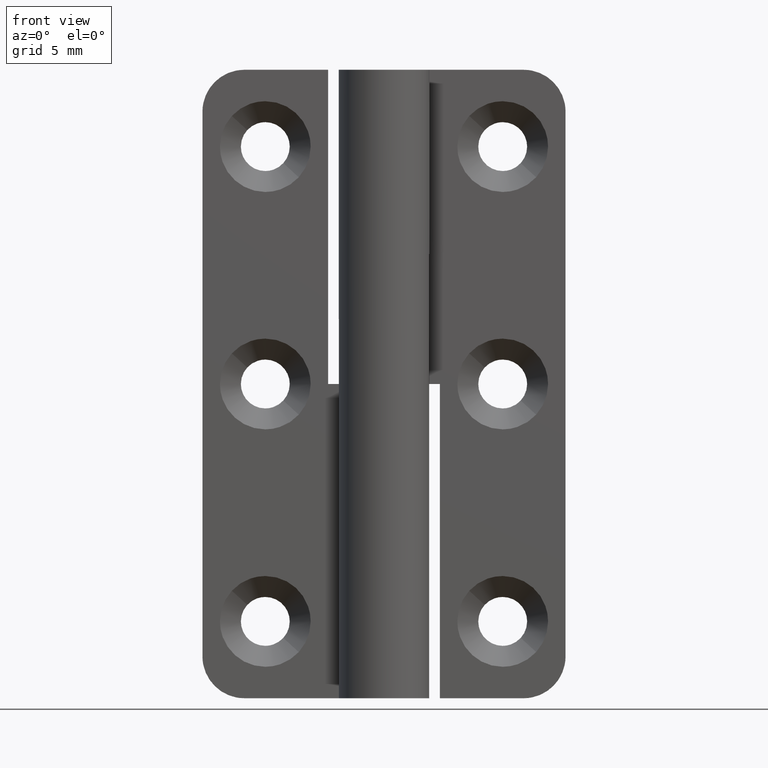
[diagram: clean part render]
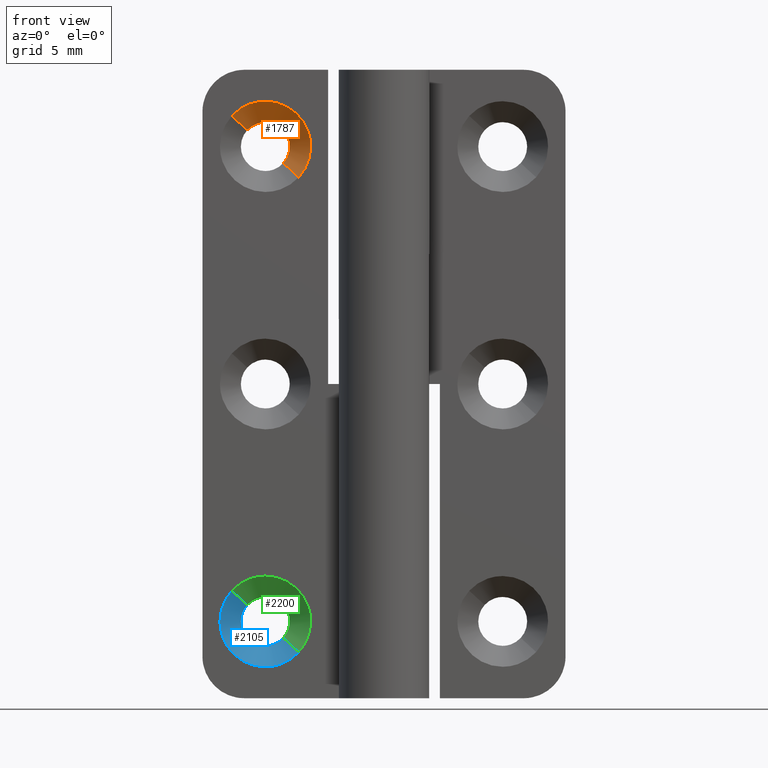
[diagram: same view with three faces highlighted in distinct colors, each labeled with its STEP entity id]
A machine part, front view with three faces highlighted in distinct colors.
Their STEP definitions:

[orange] entity #1787 — the highlighted face is a freeform B-spline surface patch.
#1600=CARTESIAN_POINT('',(-9.790236962348335,3.249997932917373,40.682298350468500));
#1601=VERTEX_POINT('',#1600);
#1611=CARTESIAN_POINT('',(-10.896151452361130,1.749999951437262,41.695682272985792));
#1612=VERTEX_POINT('',#1611);
#1613=CARTESIAN_POINT('',(-9.790236962348335,3.249997932917373,40.682298350468500));
#1614=CARTESIAN_POINT('',(-10.896151452361130,1.749999951437262,41.695682272985792));
#1615=QUASI_UNIFORM_CURVE('',1,(#1613,#1614),.UNSPECIFIED.,.F.,.U.);
#1616=EDGE_CURVE('',#1601,#1612,#1615,.T.);
#1646=CARTESIAN_POINT('',(-6.103848547639062,1.749999951437258,37.304345727014102));
#1647=VERTEX_POINT('',#1646);
#1658=CARTESIAN_POINT('',(-7.209763037651868,3.249997932917372,38.317729649531408));
#1659=VERTEX_POINT('',#1658);
#1660=CARTESIAN_POINT('',(-7.209763037651868,3.249997932917372,38.317729649531408));
#1661=CARTESIAN_POINT('',(-6.103848547639062,1.749999951437258,37.304345727014102));
#1662=QUASI_UNIFORM_CURVE('',1,(#1660,#1661),.UNSPECIFIED.,.F.,.U.);
#1663=EDGE_CURVE('',#1659,#1647,#1662,.T.);
#1692=CARTESIAN_POINT('',(-7.237411049294224,3.287497950000000,38.343064384498213));
#1693=CARTESIAN_POINT('',(-6.080461433792480,3.287497950000000,39.605653335204082));
#1694=CARTESIAN_POINT('',(-7.343050384498358,3.287497950000000,40.762602950705833));
#1695=CARTESIAN_POINT('',(-8.605639335204236,3.287497950000000,41.919552566207578));
#1696=CARTESIAN_POINT('',(-9.762588950705979,3.287497950000000,40.656963615501702));
#1697=CARTESIAN_POINT('',(-6.075509595519025,1.711562551250000,37.278377861267828));
#1698=CARTESIAN_POINT('',(-3.853873456786903,1.711562551250000,39.702868265748897));
#1699=CARTESIAN_POINT('',(-6.278363861267978,1.711562551250000,41.924504404481027));
#1700=CARTESIAN_POINT('',(-8.702854265749057,1.711562551250000,44.146140543213150));
#1701=CARTESIAN_POINT('',(-10.924490404481180,1.711562551250000,41.721650138732073));
#1709=(BOUNDED_SURFACE()B_SPLINE_SURFACE(2,1,((#1692,#1697),(#1693,#1698),(#1694,#1699),(#1695,#1700),(#1696,#1701)),.UNSPECIFIED.,.F.,.F.,.U.)B_SPLINE_SURFACE_WITH_KNOTS((3,2,3),(2,2),(0.0,5.448461561151315,10.896923122302629),(0.0,2.228709214336101),.UNSPECIFIED.)GEOMETRIC_REPRESENTATION_ITEM()RATIONAL_B_SPLINE_SURFACE(((1.0,1.0),(0.707106781186548,0.707106781186548),(1.0,1.0),(0.707106781186548,0.707106781186548),(1.0,1.0)))REPRESENTATION_ITEM('')SURFACE());
#1710=CARTESIAN_POINT('',(-8.500000000000101,3.249998000000000,41.250015999999952));
#1711=VERTEX_POINT('',#1710);
#1712=CARTESIAN_POINT('',(-9.790236962348335,3.249997932917373,40.682298350468500));
#1713=CARTESIAN_POINT('',(-9.652490726727812,3.249997940079147,40.832830460607340));
#1714=CARTESIAN_POINT('',(-9.396659858505322,3.249997953380420,41.028696698384792));
#1715=CARTESIAN_POINT('',(-8.945786057481703,3.249997976822479,41.209867003344577));
#1716=CARTESIAN_POINT('',(-8.666243908879061,3.249997991356562,41.250073562071840));
#1717=CARTESIAN_POINT('',(-8.500000000000101,3.249998000000000,41.250015999999952));
#1718=B_SPLINE_CURVE_WITH_KNOTS('',3,(#1712,#1713,#1714,#1715,#1716,#1717),.UNSPECIFIED.,.F.,.U.,(4,1,1,4),(0.000000018217797,0.612063953133983,0.952097669597802,1.450816824885681),.UNSPECIFIED.);
#1719=EDGE_CURVE('',#1601,#1711,#1718,.T.);
#1720=ORIENTED_EDGE('',*,*,#1719,.T.);
#1721=CARTESIAN_POINT('',(-6.749998000000184,3.249998000000000,39.500013461288930));
#1722=VERTEX_POINT('',#1721);
#1723=CARTESIAN_POINT('',(-8.500000000000101,3.249998000000000,41.250015999999952));
#1724=CARTESIAN_POINT('',(-8.342506230133010,3.249997999999991,41.250071397622577));
#1725=CARTESIAN_POINT('',(-8.070508268954583,3.249998000000017,41.213034158508393));
#1726=CARTESIAN_POINT('',(-7.741663962408527,3.249997999999982,41.086172664466460));
#1727=CARTESIAN_POINT('',(-7.457527106575967,3.249998000000026,40.918245848130567));
#1728=CARTESIAN_POINT('',(-7.224117499045513,3.249997999999987,40.714385302477979));
#1729=CARTESIAN_POINT('',(-7.004947529517745,3.249998000000009,40.429960614225131));
#1730=CARTESIAN_POINT('',(-6.810610383668665,3.249997999999978,40.043968677124482));
#1731=CARTESIAN_POINT('',(-6.749822857577906,3.249998000000026,39.707639453198411));
#1732=CARTESIAN_POINT('',(-6.749998000000184,3.249998000000000,39.500013461288930));
#1733=B_SPLINE_CURVE_WITH_KNOTS('',3,(#1723,#1724,#1725,#1726,#1727,#1728,#1729,#1730,#1731,#1732),.UNSPECIFIED.,.F.,.U.,(4,1,1,1,1,1,1,4),(0.000000065444313,0.472467808574149,0.816087183846718,1.052328441315729,1.460347543778974,1.739537627800183,2.126114439706746,2.748914265278359),.UNSPECIFIED.);
#1734=EDGE_CURVE('',#1711,#1722,#1733,.T.);
#1735=ORIENTED_EDGE('',*,*,#1734,.T.);
#1736=CARTESIAN_POINT('',(-6.749998000000184,3.249998000000000,39.500013461288930));
#1737=CARTESIAN_POINT('',(-6.749983324142094,3.249997993478544,39.385077497950292));
#1738=CARTESIAN_POINT('',(-6.772730105084077,3.249997980436295,39.155216857802941));
#1739=CARTESIAN_POINT('',(-6.899318273386821,3.249997956833811,38.739239872580200));
#1740=CARTESIAN_POINT('',(-7.072609711516130,3.249997941397506,38.467186246662088));
#1741=CARTESIAN_POINT('',(-7.209763037651868,3.249997932917372,38.317729649531408));
#1742=B_SPLINE_CURVE_WITH_KNOTS('',3,(#1736,#1737,#1738,#1739,#1740,#1741),.UNSPECIFIED.,.F.,.U.,(4,1,1,4),(0.000000013329938,0.344807116791824,0.689611950911267,1.298096915763849),.UNSPECIFIED.);
#1743=EDGE_CURVE('',#1722,#1659,#1742,.T.);
#1744=ORIENTED_EDGE('',*,*,#1743,.T.);
#1745=ORIENTED_EDGE('',*,*,#1663,.T.);
#1746=CARTESIAN_POINT('',(-5.250000000000126,1.750000000000000,39.500013609596962));
#1747=VERTEX_POINT('',#1746);
#1748=CARTESIAN_POINT('',(-5.250000000000126,1.750000000000000,39.500013609596962));
#1749=CARTESIAN_POINT('',(-5.249954948991269,1.749999994723485,39.261446513008117));
#1750=CARTESIAN_POINT('',(-5.298609844296942,1.749999985004269,38.822011285789607));
#1751=CARTESIAN_POINT('',(-5.484943799499003,1.749999972267110,38.246126049044960));
#1752=CARTESIAN_POINT('',(-5.747107516570186,1.749999961156910,37.743800558264752));
#1753=CARTESIAN_POINT('',(-5.968108588330741,1.749999954712880,37.452446685899233));
#1754=CARTESIAN_POINT('',(-6.103848547639062,1.749999951437258,37.304345727014102));
#1755=B_SPLINE_CURVE_WITH_KNOTS('',3,(#1748,#1749,#1750,#1751,#1752,#1753,#1754),.UNSPECIFIED.,.F.,.U.,(4,1,1,1,4),(0.000000011504529,0.715692780232056,1.318374182263362,1.808061891636486,2.410749185019918),.UNSPECIFIED.);
#1756=EDGE_CURVE('',#1747,#1647,#1755,.T.);
#1757=ORIENTED_EDGE('',*,*,#1756,.F.);
#1758=CARTESIAN_POINT('',(-8.500000000000101,1.750000000000000,42.750013999999958));
#1759=VERTEX_POINT('',#1758);
#1760=CARTESIAN_POINT('',(-8.500000000000101,1.750000000000000,42.750013999999958));
#1761=CARTESIAN_POINT('',(-8.234104481705652,1.750000000000004,42.750079327911379));
#1762=CARTESIAN_POINT('',(-7.782125245559331,1.749999999999986,42.694220831537983));
#1763=CARTESIAN_POINT('',(-7.163847043881233,1.750000000000017,42.481509994035953));
#1764=CARTESIAN_POINT('',(-6.720893628957214,1.749999999999992,42.234154646676963));
#1765=CARTESIAN_POINT('',(-6.299026478098774,1.749999999999999,41.909068043041941));
#1766=CARTESIAN_POINT('',(-5.939785037154269,1.750000000000006,41.531755261836679));
#1767=CARTESIAN_POINT('',(-5.590485760565911,1.749999999999979,40.994883854852418));
#1768=CARTESIAN_POINT('',(-5.322295892879533,1.750000000000023,40.324223918412592));
#1769=CARTESIAN_POINT('',(-5.249893160397932,1.749999999999993,39.792502356297852));
#1770=CARTESIAN_POINT('',(-5.250000000000126,1.750000000000000,39.500013609596962));
#1771=B_SPLINE_CURVE_WITH_KNOTS('',3,(#1760,#1761,#1762,#1763,#1764,#1765,#1766,#1767,#1768,#1769,#1770),.UNSPECIFIED.,.F.,.U.,(4,1,1,1,1,1,1,1,4),(0.000000048368914,0.797673212207962,1.356049108615472,1.954315122685110,2.313273947723395,2.951383636442765,3.509768746287932,4.227684522014194,5.105120314384879),.UNSPECIFIED.);
#1772=EDGE_CURVE('',#1759,#1747,#1771,.T.);
#1773=ORIENTED_EDGE('',*,*,#1772,.F.);
#1774=CARTESIAN_POINT('',(-10.896151452361130,1.749999951437262,41.695682272985792));
#1775=CARTESIAN_POINT('',(-10.725533292874690,1.749999954895171,41.881947464691983));
#1776=CARTESIAN_POINT('',(-10.329889302967061,1.749999962913692,42.223640286238613));
#1777=CARTESIAN_POINT('',(-9.750839872186912,1.749999974649256,42.519839033699107));
#1778=CARTESIAN_POINT('',(-9.131463818429932,1.749999987202148,42.705598293945982));
#1779=CARTESIAN_POINT('',(-8.752602681749066,1.749999994880501,42.750074357534487));
#1780=CARTESIAN_POINT('',(-8.500000000000101,1.750000000000000,42.750013999999958));
#1781=B_SPLINE_CURVE_WITH_KNOTS('',3,(#1774,#1775,#1776,#1777,#1778,#1779,#1780),.UNSPECIFIED.,.F.,.U.,(4,1,1,1,4),(0.000000014682437,0.757792213932534,1.557680833806904,1.936578730687966,2.694370929938281),.UNSPECIFIED.);
#1782=EDGE_CURVE('',#1612,#1759,#1781,.T.);
#1783=ORIENTED_EDGE('',*,*,#1782,.F.);
#1784=ORIENTED_EDGE('',*,*,#1616,.F.);
#1785=EDGE_LOOP('',(#1720,#1735,#1744,#1745,#1757,#1773,#1783,#1784));
#1786=FACE_OUTER_BOUND('',#1785,.T.);
#1787=ADVANCED_FACE('',(#1786),#1709,.F.);

[blue] entity #2105 — the highlighted face is a freeform B-spline surface patch.
#1994=CARTESIAN_POINT('',(-9.762588950705979,3.287497950000000,6.656949615501743));
#1995=CARTESIAN_POINT('',(-10.919538566207722,3.287497950000000,5.394360664795865));
#1996=CARTESIAN_POINT('',(-9.656949615501844,3.287497950000000,4.237411049294122));
#1997=CARTESIAN_POINT('',(-8.394360664795967,3.287497950000000,3.080461433792380));
#1998=CARTESIAN_POINT('',(-7.237411049294224,3.287497950000000,4.343050384498257));
#1999=CARTESIAN_POINT('',(-10.924490404481180,1.711562551250000,7.721636138732123));
#2000=CARTESIAN_POINT('',(-13.146126543213301,1.711562551250000,5.297145734251046));
#2001=CARTESIAN_POINT('',(-10.721636138732221,1.711562551250000,3.075509595518923));
#2002=CARTESIAN_POINT('',(-8.297145734251149,1.711562551250000,0.853873456786800));
#2003=CARTESIAN_POINT('',(-6.075509595519025,1.711562551250000,3.278363861267877));
#2011=(BOUNDED_SURFACE()B_SPLINE_SURFACE(2,1,((#1994,#1999),(#1995,#2000),(#1996,#2001),(#1997,#2002),(#1998,#2003)),.UNSPECIFIED.,.F.,.F.,.U.)B_SPLINE_SURFACE_WITH_KNOTS((3,2,3),(2,2),(0.0,5.448461561151315,10.896923122302629),(0.0,2.228709214336101),.UNSPECIFIED.)GEOMETRIC_REPRESENTATION_ITEM()RATIONAL_B_SPLINE_SURFACE(((1.0,1.0),(0.707106781186548,0.707106781186548),(1.0,1.0),(0.707106781186548,0.707106781186548),(1.0,1.0)))REPRESENTATION_ITEM('')SURFACE());
#2012=CARTESIAN_POINT('',(-10.250002000000020,3.249998000000000,5.500000538711026));
#2013=VERTEX_POINT('',#2012);
#2014=CARTESIAN_POINT('',(-9.790236962348333,3.249997932917373,6.682284350468546));
#2015=VERTEX_POINT('',#2014);
#2016=CARTESIAN_POINT('',(-10.250002000000020,3.249998000000000,5.500000538711026));
#2017=CARTESIAN_POINT('',(-10.250181592774929,3.249997988106228,5.709619845684656));
#2018=CARTESIAN_POINT('',(-10.192203513518930,3.249997970083840,6.027251738020675));
#2019=CARTESIAN_POINT('',(-10.002339873155879,3.249997947904181,6.418152432283669));
#2020=CARTESIAN_POINT('',(-9.867898274863606,3.249997937724908,6.597555081251812));
#2021=CARTESIAN_POINT('',(-9.790236962348333,3.249997932917373,6.682284350468546));
#2022=B_SPLINE_CURVE_WITH_KNOTS('',3,(#2016,#2017,#2018,#2019,#2020,#2021),.UNSPECIFIED.,.F.,.U.,(4,1,1,4),(0.000000013333348,0.628774676230206,0.953289812302959,1.298096915763829),.UNSPECIFIED.);
#2023=EDGE_CURVE('',#2013,#2015,#2022,.T.);
#2024=ORIENTED_EDGE('',*,*,#2023,.T.);
#2025=CARTESIAN_POINT('',(-10.896151452361130,1.749999951437263,7.695668272985840));
#2026=VERTEX_POINT('',#2025);
#2027=CARTESIAN_POINT('',(-9.790236962348333,3.249997932917373,6.682284350468546));
#2028=CARTESIAN_POINT('',(-10.896151452361130,1.749999951437263,7.695668272985840));
#2029=QUASI_UNIFORM_CURVE('',1,(#2027,#2028),.UNSPECIFIED.,.F.,.U.);
#2030=EDGE_CURVE('',#2015,#2026,#2029,.T.);
#2031=ORIENTED_EDGE('',*,*,#2030,.T.);
#2032=CARTESIAN_POINT('',(-11.750000000000080,1.750000000000000,5.500000390402961));
#2033=VERTEX_POINT('',#2032);
#2034=CARTESIAN_POINT('',(-11.750000000000080,1.750000000000000,5.500000390402961));
#2035=CARTESIAN_POINT('',(-11.750120164793390,1.749999993057167,5.813906989572345));
#2036=CARTESIAN_POINT('',(-11.667506629659560,1.749999980561717,6.378863766213115));
#2037=CARTESIAN_POINT('',(-11.348221163061719,1.749999964121383,7.122180841828921));
#2038=CARTESIAN_POINT('',(-11.057346936649820,1.749999955326988,7.519802164881399));
#2039=CARTESIAN_POINT('',(-10.896151452361130,1.749999951437263,7.695668272985840));
#2040=B_SPLINE_CURVE_WITH_KNOTS('',3,(#2034,#2035,#2036,#2037,#2038,#2039),.UNSPECIFIED.,.F.,.U.,(4,1,1,4),(0.000000011505972,0.941699805192028,1.695056416283830,2.410749185019935),.UNSPECIFIED.);
#2041=EDGE_CURVE('',#2033,#2026,#2040,.T.);
#2042=ORIENTED_EDGE('',*,*,#2041,.F.);
#2043=CARTESIAN_POINT('',(-8.500000000000101,1.750000000000000,2.250000000000000));
#2044=VERTEX_POINT('',#2043);
#2045=CARTESIAN_POINT('',(-8.500000000000101,1.750000000000000,2.250000000000000));
#2046=CARTESIAN_POINT('',(-8.712711946694563,1.750000000000001,2.249975788693249));
#2047=CARTESIAN_POINT('',(-9.151426856715368,1.749999999999997,2.293213030644976));
#2048=CARTESIAN_POINT('',(-9.700419940285855,1.750000000000005,2.463423414019688));
#2049=CARTESIAN_POINT('',(-10.176310132414329,1.749999999999994,2.702997460759610));
#2050=CARTESIAN_POINT('',(-10.548637368144069,1.750000000000004,2.961811710349786));
#2051=CARTESIAN_POINT('',(-10.927201329755629,1.750000000000001,3.317822017532759));
#2052=CARTESIAN_POINT('',(-11.236866737779120,1.750000000000000,3.719677765187295));
#2053=CARTESIAN_POINT('',(-11.519673032860471,1.750000000000000,4.248725823972375));
#2054=CARTESIAN_POINT('',(-11.705494370112520,1.749999999999999,4.835274964160829));
#2055=CARTESIAN_POINT('',(-11.750017958903690,1.750000000000000,5.287290369270048));
#2056=CARTESIAN_POINT('',(-11.750000000000080,1.750000000000000,5.500000390402961));
#2057=B_SPLINE_CURVE_WITH_KNOTS('',3,(#2045,#2046,#2047,#2048,#2049,#2050,#2051,#2052,#2053,#2054,#2055,#2056),.UNSPECIFIED.,.F.,.U.,(4,1,1,1,1,1,1,1,1,4),(0.000000048364596,0.638137660554621,1.316164575793128,1.715003788602487,2.233497435713498,2.672195628227249,3.270458510173492,3.749071341041745,4.466984760279095,5.105120314384840),.UNSPECIFIED.);
#2058=EDGE_CURVE('',#2044,#2033,#2057,.T.);
#2059=ORIENTED_EDGE('',*,*,#2058,.F.);
#2060=CARTESIAN_POINT('',(-6.103848547639061,1.749999951437257,3.304331727014149));
#2061=VERTEX_POINT('',#2060);
#2062=CARTESIAN_POINT('',(-6.103848547639061,1.749999951437257,3.304331727014149));
#2063=CARTESIAN_POINT('',(-6.274459478723138,1.749999954895026,3.118051119662787));
#2064=CARTESIAN_POINT('',(-6.563204861126398,1.749999960747021,2.868772789940085));
#2065=CARTESIAN_POINT('',(-7.058253055143913,1.749999970780151,2.573660262463343));
#2066=CARTESIAN_POINT('',(-7.658086238283751,1.749999982936961,2.327999659051093));
#2067=CARTESIAN_POINT('',(-8.177221240369590,1.749999993458242,2.249859268498790));
#2068=CARTESIAN_POINT('',(-8.500000000000101,1.750000000000000,2.250000000000000));
#2069=B_SPLINE_CURVE_WITH_KNOTS('',3,(#2062,#2063,#2064,#2065,#2066,#2067,#2068),.UNSPECIFIED.,.F.,.U.,(4,1,1,1,4),(0.000000014685266,0.757792213934785,1.136690110807686,1.726080500667894,2.694370929938265),.UNSPECIFIED.);
#2070=EDGE_CURVE('',#2061,#2044,#2069,.T.);
#2071=ORIENTED_EDGE('',*,*,#2070,.F.);
#2072=CARTESIAN_POINT('',(-7.209763037651872,3.249997932917374,4.317715649531455));
#2073=VERTEX_POINT('',#2072);
#2074=CARTESIAN_POINT('',(-7.209763037651872,3.249997932917374,4.317715649531455));
#2075=CARTESIAN_POINT('',(-6.103848547639061,1.749999951437257,3.304331727014149));
#2076=QUASI_UNIFORM_CURVE('',1,(#2074,#2075),.UNSPECIFIED.,.F.,.U.);
#2077=EDGE_CURVE('',#2073,#2061,#2076,.T.);
#2078=ORIENTED_EDGE('',*,*,#2077,.F.);
#2079=CARTESIAN_POINT('',(-8.500000000000101,3.249998000000000,3.749998000000000));
#2080=VERTEX_POINT('',#2079);
#2081=CARTESIAN_POINT('',(-7.209763037651872,3.249997932917374,4.317715649531455));
#2082=CARTESIAN_POINT('',(-7.352588329126093,3.249997940343220,4.161583726806260));
#2083=CARTESIAN_POINT('',(-7.640657641339184,3.249997955320656,3.944029972204358));
#2084=CARTESIAN_POINT('',(-8.099521543574049,3.249997979178122,3.780064458462061));
#2085=CARTESIAN_POINT('',(-8.371543335521219,3.249997993321236,3.749980182314847));
#2086=CARTESIAN_POINT('',(-8.500000000000101,3.249998000000000,3.749998000000000));
#2087=B_SPLINE_CURVE_WITH_KNOTS('',3,(#2081,#2082,#2083,#2084,#2085,#2086),.UNSPECIFIED.,.F.,.U.,(4,1,1,4),(0.000000018217654,0.634739957132242,1.065443277264843,1.450816824885676),.UNSPECIFIED.);
#2088=EDGE_CURVE('',#2073,#2080,#2087,.T.);
#2089=ORIENTED_EDGE('',*,*,#2088,.T.);
#2090=CARTESIAN_POINT('',(-8.500000000000101,3.249998000000000,3.749998000000000));
#2091=CARTESIAN_POINT('',(-8.707623151655392,3.249998000000002,3.749839664648075));
#2092=CARTESIAN_POINT('',(-9.058270055701824,3.249997999999991,3.813178288223009));
#2093=CARTESIAN_POINT('',(-9.493625658340681,3.249998000000015,4.039083682672034));
#2094=CARTESIAN_POINT('',(-9.754169286439996,3.249997999999987,4.266665525220079));
#2095=CARTESIAN_POINT('',(-9.961826246943700,3.249998000000014,4.522881385661451));
#2096=CARTESIAN_POINT('',(-10.114489639469230,3.249998000000007,4.792348301345670));
#2097=CARTESIAN_POINT('',(-10.225258620766880,3.249997999999957,5.142081388023592));
#2098=CARTESIAN_POINT('',(-10.250020747090360,3.249998000000026,5.378306406056077));
#2099=CARTESIAN_POINT('',(-10.250002000000020,3.249998000000000,5.500000538711026));
#2100=B_SPLINE_CURVE_WITH_KNOTS('',3,(#2090,#2091,#2092,#2093,#2094,#2095,#2096,#2097,#2098,#2099),.UNSPECIFIED.,.F.,.U.,(4,1,1,1,1,1,1,4),(0.000000065444209,0.622799807217140,1.052328441316829,1.460347543779971,1.653635642069078,2.040209644713849,2.383833802513191,2.748914265278329),.UNSPECIFIED.);
#2101=EDGE_CURVE('',#2080,#2013,#2100,.T.);
#2102=ORIENTED_EDGE('',*,*,#2101,.T.);
#2103=EDGE_LOOP('',(#2024,#2031,#2042,#2059,#2071,#2078,#2089,#2102));
#2104=FACE_OUTER_BOUND('',#2103,.T.);
#2105=ADVANCED_FACE('',(#2104),#2011,.F.);

[green] entity #2200 — the highlighted face is a freeform B-spline surface patch.
#2014=CARTESIAN_POINT('',(-9.790236962348333,3.249997932917373,6.682284350468546));
#2015=VERTEX_POINT('',#2014);
#2025=CARTESIAN_POINT('',(-10.896151452361130,1.749999951437263,7.695668272985840));
#2026=VERTEX_POINT('',#2025);
#2027=CARTESIAN_POINT('',(-9.790236962348333,3.249997932917373,6.682284350468546));
#2028=CARTESIAN_POINT('',(-10.896151452361130,1.749999951437263,7.695668272985840));
#2029=QUASI_UNIFORM_CURVE('',1,(#2027,#2028),.UNSPECIFIED.,.F.,.U.);
#2030=EDGE_CURVE('',#2015,#2026,#2029,.T.);
#2060=CARTESIAN_POINT('',(-6.103848547639061,1.749999951437257,3.304331727014149));
#2061=VERTEX_POINT('',#2060);
#2072=CARTESIAN_POINT('',(-7.209763037651872,3.249997932917374,4.317715649531455));
#2073=VERTEX_POINT('',#2072);
#2074=CARTESIAN_POINT('',(-7.209763037651872,3.249997932917374,4.317715649531455));
#2075=CARTESIAN_POINT('',(-6.103848547639061,1.749999951437257,3.304331727014149));
#2076=QUASI_UNIFORM_CURVE('',1,(#2074,#2075),.UNSPECIFIED.,.F.,.U.);
#2077=EDGE_CURVE('',#2073,#2061,#2076,.T.);
#2106=CARTESIAN_POINT('',(-7.237411049294224,3.287497950000000,4.343050384498257));
#2107=CARTESIAN_POINT('',(-6.080461433792480,3.287497950000000,5.605639335204135));
#2108=CARTESIAN_POINT('',(-7.343050384498358,3.287497950000000,6.762588950705878));
#2109=CARTESIAN_POINT('',(-8.605639335204236,3.287497950000000,7.919538566207621));
#2110=CARTESIAN_POINT('',(-9.762588950705979,3.287497950000000,6.656949615501743));
#2111=CARTESIAN_POINT('',(-6.075509595519025,1.711562551250000,3.278363861267877));
#2112=CARTESIAN_POINT('',(-3.853873456786903,1.711562551250000,5.702854265748954));
#2113=CARTESIAN_POINT('',(-6.278363861267978,1.711562551250000,7.924490404481077));
#2114=CARTESIAN_POINT('',(-8.702854265749057,1.711562551250000,10.146126543213200));
#2115=CARTESIAN_POINT('',(-10.924490404481180,1.711562551250000,7.721636138732123));
#2123=(BOUNDED_SURFACE()B_SPLINE_SURFACE(2,1,((#2106,#2111),(#2107,#2112),(#2108,#2113),(#2109,#2114),(#2110,#2115)),.UNSPECIFIED.,.F.,.F.,.U.)B_SPLINE_SURFACE_WITH_KNOTS((3,2,3),(2,2),(0.0,5.448461561151315,10.896923122302629),(0.0,2.228709214336101),.UNSPECIFIED.)GEOMETRIC_REPRESENTATION_ITEM()RATIONAL_B_SPLINE_SURFACE(((1.0,1.0),(0.707106781186548,0.707106781186548),(1.0,1.0),(0.707106781186548,0.707106781186548),(1.0,1.0)))REPRESENTATION_ITEM('')SURFACE());
#2124=CARTESIAN_POINT('',(-8.500000000000101,3.249998000000000,7.250002000000000));
#2125=VERTEX_POINT('',#2124);
#2126=CARTESIAN_POINT('',(-9.790236962348333,3.249997932917373,6.682284350468546));
#2127=CARTESIAN_POINT('',(-9.677964895161120,3.249997938754678,6.804889788144499));
#2128=CARTESIAN_POINT('',(-9.429955009374625,3.249997951649324,7.008041199583453));
#2129=CARTESIAN_POINT('',(-8.983571293692179,3.249997974857934,7.204438704621525));
#2130=CARTESIAN_POINT('',(-8.666246227767672,3.249997991356442,7.250068216848292));
#2131=CARTESIAN_POINT('',(-8.500000000000101,3.249998000000000,7.250002000000000));
#2132=B_SPLINE_CURVE_WITH_KNOTS('',3,(#2126,#2127,#2128,#2129,#2130,#2131),.UNSPECIFIED.,.F.,.U.,(4,1,1,4),(0.000000018218155,0.498719173498879,0.952097669598035,1.450816824885683),.UNSPECIFIED.);
#2133=EDGE_CURVE('',#2015,#2125,#2132,.T.);
#2134=ORIENTED_EDGE('',*,*,#2133,.T.);
#2135=CARTESIAN_POINT('',(-6.749998000000184,3.249998000000000,5.499999461288978));
#2136=VERTEX_POINT('',#2135);
#2137=CARTESIAN_POINT('',(-8.500000000000101,3.249998000000000,7.250002000000000));
#2138=CARTESIAN_POINT('',(-8.378307422105648,3.249998000000000,7.250015315942677));
#2139=CARTESIAN_POINT('',(-8.106278148395418,3.249998000000009,7.221537724622539));
#2140=CARTESIAN_POINT('',(-7.724852128993728,3.249997999999976,7.087718634408881));
#2141=CARTESIAN_POINT('',(-7.392820589317310,3.249998000000044,6.871666561748016));
#2142=CARTESIAN_POINT('',(-7.148685378773282,3.249997999999934,6.627516829831030));
#2143=CARTESIAN_POINT('',(-6.961710677790111,3.249998000000066,6.354982467339017));
#2144=CARTESIAN_POINT('',(-6.798426483928798,3.249997999999949,5.986728287987361));
#2145=CARTESIAN_POINT('',(-6.749902144210431,3.249998000000024,5.686134598070466));
#2146=CARTESIAN_POINT('',(-6.749998000000184,3.249998000000000,5.499999461288978));
#2147=B_SPLINE_CURVE_WITH_KNOTS('',3,(#2137,#2138,#2139,#2140,#2141,#2142,#2143,#2144,#2145,#2146),.UNSPECIFIED.,.F.,.U.,(4,1,1,1,1,1,1,4),(0.000000065444123,0.365080833872987,0.816087183847395,1.202666004243763,1.546248330865799,1.846924437528564,2.190544170060442,2.748914265278333),.UNSPECIFIED.);
#2148=EDGE_CURVE('',#2125,#2136,#2147,.T.);
#2149=ORIENTED_EDGE('',*,*,#2148,.T.);
#2150=CARTESIAN_POINT('',(-6.749998000000184,3.249998000000000,5.499999461288978));
#2151=CARTESIAN_POINT('',(-6.749984204503618,3.249997993478543,5.385063410661878));
#2152=CARTESIAN_POINT('',(-6.772724326678906,3.249997980436207,5.155201388516423));
#2153=CARTESIAN_POINT('',(-6.899333274712887,3.249997956834218,4.739233113933841));
#2154=CARTESIAN_POINT('',(-7.072596604108623,3.249997941397069,4.467164322290838));
#2155=CARTESIAN_POINT('',(-7.209763037651872,3.249997932917374,4.317715649531455));
#2156=B_SPLINE_CURVE_WITH_KNOTS('',3,(#2150,#2151,#2152,#2153,#2154,#2155),.UNSPECIFIED.,.F.,.U.,(4,1,1,4),(0.000000013333315,0.344807116793784,0.689611950912312,1.298096915763835),.UNSPECIFIED.);
#2157=EDGE_CURVE('',#2136,#2073,#2156,.T.);
#2158=ORIENTED_EDGE('',*,*,#2157,.T.);
#2159=ORIENTED_EDGE('',*,*,#2077,.T.);
#2160=CARTESIAN_POINT('',(-5.250000000000126,1.750000000000000,5.499999609596993));
#2161=VERTEX_POINT('',#2160);
#2162=CARTESIAN_POINT('',(-5.250000000000126,1.750000000000000,5.499999609596993));
#2163=CARTESIAN_POINT('',(-5.249849765962551,1.749999992779328,5.173531240475535));
#2164=CARTESIAN_POINT('',(-5.337769111241001,1.749999980006588,4.596037190890456));
#2165=CARTESIAN_POINT('',(-5.665651974175929,1.749999963649312,3.856475550633129));
#2166=CARTESIAN_POINT('',(-5.951140151322709,1.749999955122292,3.470943106157604));
#2167=CARTESIAN_POINT('',(-6.103848547639061,1.749999951437257,3.304331727014149));
#2168=B_SPLINE_CURVE_WITH_KNOTS('',3,(#2162,#2163,#2164,#2165,#2166,#2167),.UNSPECIFIED.,.F.,.U.,(4,1,1,4),(0.000000011505826,0.979372163380162,1.732725731091298,2.410749185019893),.UNSPECIFIED.);
#2169=EDGE_CURVE('',#2161,#2061,#2168,.T.);
#2170=ORIENTED_EDGE('',*,*,#2169,.F.);
#2171=CARTESIAN_POINT('',(-8.500000000000101,1.750000000000000,8.749999999999998));
#2172=VERTEX_POINT('',#2171);
#2173=CARTESIAN_POINT('',(-8.500000000000101,1.750000000000000,8.749999999999998));
#2174=CARTESIAN_POINT('',(-8.340468620342556,1.750000000000001,8.750000982012576));
#2175=CARTESIAN_POINT('',(-7.941627600191870,1.749999999999997,8.720606764335116));
#2176=CARTESIAN_POINT('',(-7.307843732019140,1.750000000000004,8.553607271743642));
#2177=CARTESIAN_POINT('',(-6.727543738703250,1.749999999999996,8.247949354004742));
#2178=CARTESIAN_POINT('',(-6.227982332667470,1.750000000000006,7.848105974200630));
#2179=CARTESIAN_POINT('',(-5.823493763193654,1.749999999999998,7.385008772613495));
#2180=CARTESIAN_POINT('',(-5.530248563634706,1.750000000000001,6.859818263598614));
#2181=CARTESIAN_POINT('',(-5.309644894422687,1.750000000000000,6.231145536837542));
#2182=CARTESIAN_POINT('',(-5.249902480003478,1.750000000000001,5.792489780518172));
#2183=CARTESIAN_POINT('',(-5.250000000000126,1.750000000000000,5.499999609596993));
#2184=B_SPLINE_CURVE_WITH_KNOTS('',3,(#2173,#2174,#2175,#2176,#2177,#2178,#2179,#2180,#2181,#2182,#2183),.UNSPECIFIED.,.F.,.U.,(4,1,1,1,1,1,1,1,4),(0.000000048364534,0.478601387730751,1.196511501853240,1.954315122682758,2.432924922720288,3.110921112325753,3.788956071172565,4.227684522014404,5.105120314384864),.UNSPECIFIED.);
#2185=EDGE_CURVE('',#2172,#2161,#2184,.T.);
#2186=ORIENTED_EDGE('',*,*,#2185,.F.);
#2187=CARTESIAN_POINT('',(-10.896151452361130,1.749999951437263,7.695668272985840));
#2188=CARTESIAN_POINT('',(-10.725540765045601,1.749999954895033,7.881949047595344));
#2189=CARTESIAN_POINT('',(-10.436794328452180,1.749999960747032,8.131225836688003));
#2190=CARTESIAN_POINT('',(-9.941748206577824,1.749999970780131,8.426342134617391));
#2191=CARTESIAN_POINT('',(-9.341911954885861,1.749999982936991,8.671996796556989));
#2192=CARTESIAN_POINT('',(-8.822779481094571,1.749999993458230,8.750142013094948));
#2193=CARTESIAN_POINT('',(-8.500000000000101,1.750000000000000,8.749999999999998));
#2194=B_SPLINE_CURVE_WITH_KNOTS('',3,(#2187,#2188,#2189,#2190,#2191,#2192,#2193),.UNSPECIFIED.,.F.,.U.,(4,1,1,1,4),(0.000000014685277,0.757792213934814,1.136690110807757,1.726080500667897,2.694370929938261),.UNSPECIFIED.);
#2195=EDGE_CURVE('',#2026,#2172,#2194,.T.);
#2196=ORIENTED_EDGE('',*,*,#2195,.F.);
#2197=ORIENTED_EDGE('',*,*,#2030,.F.);
#2198=EDGE_LOOP('',(#2134,#2149,#2158,#2159,#2170,#2186,#2196,#2197));
#2199=FACE_OUTER_BOUND('',#2198,.T.);
#2200=ADVANCED_FACE('',(#2199),#2123,.F.);